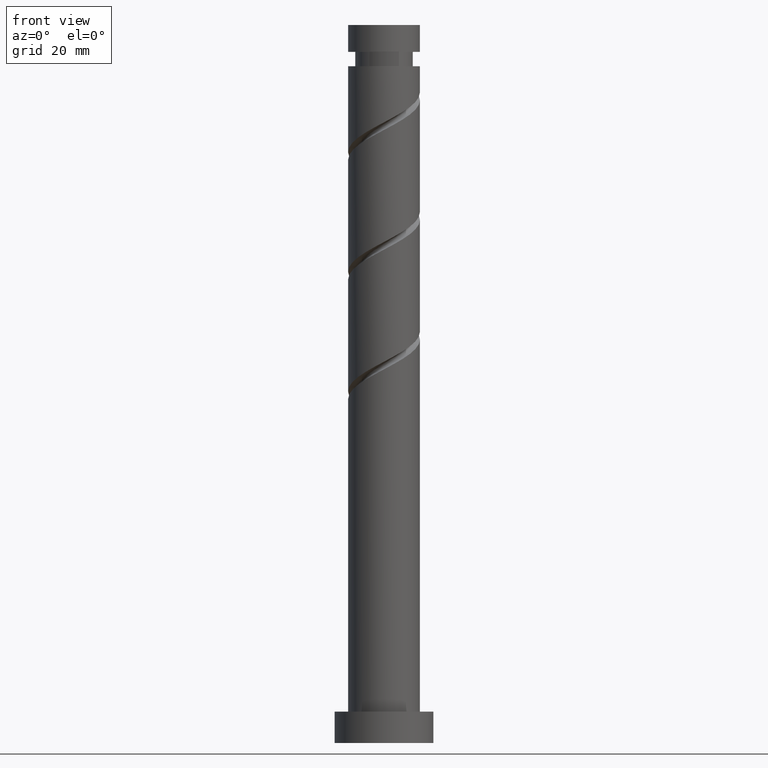
[diagram: clean part render]
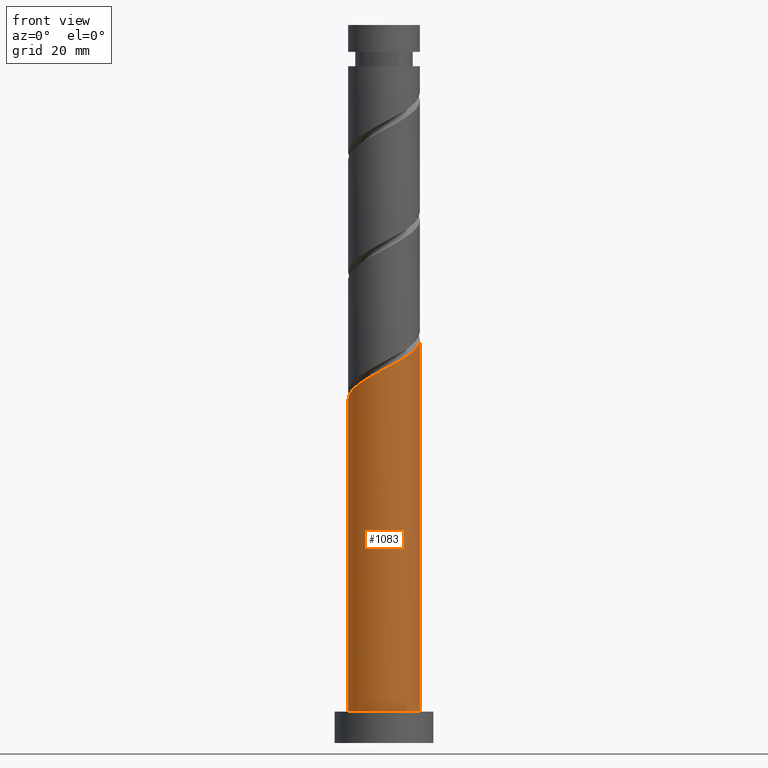
[diagram: same view with one face highlighted and labeled with its STEP entity id]
A machine part, front view. The second image highlights one B-rep face of the part: STEP entity #1083.
In plain terms, the highlighted cylindrical surface (edge-blend (fillet) strip) has radius 8 mm, axis along (-0, -0, -1).
Its self-contained STEP definition (entity closure, byte-faithful):
#158 = CARTESIAN_POINT ( 'NONE',  ( 3.736276773218409009, -7.073912345647833000, 85.34466490917378678 ) ) ;
#172 = EDGE_LOOP ( 'NONE', ( #547, #1606, #1247, #325 ) ) ;
#183 = CARTESIAN_POINT ( 'NONE',  ( 8.000000000000000000, 9.797174393178825657E-16, 7.000000000000000000 ) ) ;
#208 = CARTESIAN_POINT ( 'NONE',  ( -8.000000000000000000, 0.000000000000000000, 160.0000000000000000 ) ) ;
#277 = CARTESIAN_POINT ( 'NONE',  ( 7.792847194175212877, -1.808737849506035777, 88.98102854553739860 ) ) ;
#288 = CARTESIAN_POINT ( 'NONE',  ( -5.793709997158977387, -5.635241355040886191, 79.89011945462831932 ) ) ;
#293 = CARTESIAN_POINT ( 'NONE',  ( -1.827337510560427036, -7.872982807249216286, 82.31436187887078404 ) ) ;
#325 = ORIENTED_EDGE ( 'NONE', *, *, #598, .T. ) ;
#338 =( BOUNDED_CURVE ( )  B_SPLINE_CURVE ( 2, ( #1427, #792, #1297, #419, #1048, #1434, #922, #288, #1564, #682, #391, #293, #1154, #782, #1186, #1409, #158, #1554, #1570, #1179, #675, #424, #277, #1425, #529 ),
 .UNSPECIFIED., .F., .T. ) 
 B_SPLINE_CURVE_WITH_KNOTS ( ( 3, 2, 2, 2, 2, 2, 2, 2, 2, 2, 2, 2, 3 ),
 ( 0.05452521624175136333, 0.05681818181818176772, 0.06818181818181823228, 0.07954545454545458583, 0.09090909090909093937, 0.1022727272727272929, 0.1136363636363636465, 0.1250000000000000000, 0.1363636363636363535, 0.1477272727272727071, 0.1590909090909090606, 0.1704545454545454142, 0.1795252162417511343 ),
 .UNSPECIFIED. ) 
 CURVE ( )  GEOMETRIC_REPRESENTATION_ITEM ( )  RATIONAL_B_SPLINE_CURVE ( ( 0.9061101570135590144, 0.9072237824201411227, 0.9090909090909186085, 0.8998376744372208469, 0.9090909090909186085, 0.8998376744372208469, 0.9090909090909186085, 0.8998376744372208469, 0.9090909090909186085, 0.8998376744372208469, 0.9090909090909186085, 0.8998376744372208469, 0.9090909090909186085, 0.8998376744372208469, 0.9090909090909186085, 0.8998376744372208469, 0.9090909090909186085, 0.8998376744372208469, 0.9090909090909186085, 0.8998376744372208469, 0.9090909090909186085, 0.8998376744372208469, 0.9090909090909186085, 0.9017048011079984438, 0.9061101570135587924 ) ) 
 REPRESENTATION_ITEM ( '' )  );
#373 = EDGE_CURVE ( 'NONE', #396, #1254, #1625, .T. ) ;
#391 = CARTESIAN_POINT ( 'NONE',  ( -2.899365294310153995, -7.456117011565067898, 81.70830127281011812 ) ) ;
#396 = VERTEX_POINT ( 'NONE', #1241 ) ;
#401 = AXIS2_PLACEMENT_3D ( 'NONE', #1549, #909, #1420 ) ;
#409 = CARTESIAN_POINT ( 'NONE',  ( -8.000000000000000000, 0.000000000000000000, 7.000000000000000000 ) ) ;
#419 = CARTESIAN_POINT ( 'NONE',  ( -7.920620496058218052, -1.608350589319820889, 77.46587703038591144 ) ) ;
#424 = CARTESIAN_POINT ( 'NONE',  ( 7.532789951889099278, -2.929180124448062195, 88.37496793947681795 ) ) ;
#496 = DIRECTION ( 'NONE',  ( -0.000000000000000000, -0.000000000000000000, -1.000000000000000000 ) ) ;
#504 = DIRECTION ( 'NONE',  ( -0.000000000000000000, -0.000000000000000000, -1.000000000000000000 ) ) ;
#529 = CARTESIAN_POINT ( 'NONE',  ( 8.000000000000012434, 4.008427948537046319E-15, 89.94975588441830894 ) ) ;
#547 = ORIENTED_EDGE ( 'NONE', *, *, #373, .F. ) ;
#598 = EDGE_CURVE ( 'NONE', #695, #1254, #1436, .T. ) ;
#646 = FACE_OUTER_BOUND ( 'NONE', #172, .T. ) ;
#660 = EDGE_CURVE ( 'NONE', #688, #396, #338, .T. ) ;
#675 = CARTESIAN_POINT ( 'NONE',  ( 6.967601788265361584, -3.930970022801182573, 87.76890733341623729 ) ) ;
#682 = CARTESIAN_POINT ( 'NONE',  ( -3.971393078059878068, -7.039251215880919510, 81.10224066674956589 ) ) ;
#688 = VERTEX_POINT ( 'NONE', #1054 ) ;
#695 = VERTEX_POINT ( 'NONE', #409 ) ;
#782 = CARTESIAN_POINT ( 'NONE',  ( 0.4647580744500007799, -8.068892154005805395, 83.52648309099197377 ) ) ;
#792 = CARTESIAN_POINT ( 'NONE',  ( -8.000000000000014211, -0.2302042121905847616, 76.73852055580324816 ) ) ;
#902 = VECTOR ( 'NONE', #1228, 1000.000000000000000 ) ;
#909 = DIRECTION ( 'NONE',  ( 0.000000000000000000, 0.000000000000000000, 1.000000000000000000 ) ) ;
#922 = CARTESIAN_POINT ( 'NONE',  ( -6.470182492983659550, -4.704969554363553463, 79.28405884856771024 ) ) ;
#1048 = CARTESIAN_POINT ( 'NONE',  ( -7.533637742433276330, -2.691524171503019591, 78.07193763644652051 ) ) ;
#1054 = CARTESIAN_POINT ( 'NONE',  ( -8.000000000000012434, -4.397305286827952944E-15, 76.61642255108502297 ) ) ;
#1083 = ADVANCED_FACE ( 'NONE', ( #646 ), #1388, .T. ) ;
#1129 = CARTESIAN_POINT ( 'NONE',  ( 8.000000000000000000, 9.797174393178825657E-16, 160.0000000000000000 ) ) ;
#1154 = CARTESIAN_POINT ( 'NONE',  ( -0.6812897180552131005, -7.970937480627512173, 82.92042248493137890 ) ) ;
#1179 = CARTESIAN_POINT ( 'NONE',  ( 6.402413624641629220, -4.932759921154301175, 87.16284672735559980 ) ) ;
#1186 = CARTESIAN_POINT ( 'NONE',  ( 1.591979899370592699, -7.840000000000012292, 84.13254369705255442 ) ) ;
#1191 = AXIS2_PLACEMENT_3D ( 'NONE', #1404, #496, #1494 ) ;
#1228 = DIRECTION ( 'NONE',  ( -0.000000000000000000, -0.000000000000000000, -1.000000000000000000 ) ) ;
#1241 = CARTESIAN_POINT ( 'NONE',  ( 8.000000000000012434, 4.008427948537045530E-15, 89.94975588441830894 ) ) ;
#1247 = ORIENTED_EDGE ( 'NONE', *, *, #1505, .T. ) ;
#1254 = VERTEX_POINT ( 'NONE', #183 ) ;
#1297 = CARTESIAN_POINT ( 'NONE',  ( -7.986762466259771820, -0.4600275073779058754, 76.85981642432527394 ) ) ;
#1385 = VECTOR ( 'NONE', #504, 1000.000000000000000 ) ;
#1388 = CYLINDRICAL_SURFACE ( 'NONE', #1191, 8.000000000000000000 ) ;
#1404 = CARTESIAN_POINT ( 'NONE',  ( 0.000000000000000000, 0.000000000000000000, 160.0000000000000000 ) ) ;
#1409 = CARTESIAN_POINT ( 'NONE',  ( 2.719201724291185229, -7.611107845994222743, 84.73860430311317771 ) ) ;
#1420 = DIRECTION ( 'NONE',  ( 1.000000000000000000, 0.000000000000000000, 0.000000000000000000 ) ) ;
#1425 = CARTESIAN_POINT ( 'NONE',  ( 8.000000000000012434, -0.9162314190810022518, 89.46379593144700948 ) ) ;
#1427 = CARTESIAN_POINT ( 'NONE',  ( -8.000000000000012434, -4.397305286827952944E-15, 76.61642255108502297 ) ) ;
#1434 = CARTESIAN_POINT ( 'NONE',  ( -7.146654988808340825, -3.774697753686219848, 78.67799824250710117 ) ) ;
#1436 = CIRCLE ( 'NONE', #401, 8.000000000000000000 ) ;
#1494 = DIRECTION ( 'NONE',  ( -1.000000000000000000, 0.000000000000000000, 0.000000000000000000 ) ) ;
#1505 = EDGE_CURVE ( 'NONE', #688, #695, #1613, .T. ) ;
#1549 = CARTESIAN_POINT ( 'NONE',  ( 0.000000000000000000, 0.000000000000000000, 7.000000000000000000 ) ) ;
#1554 = CARTESIAN_POINT ( 'NONE',  ( 4.753351822145638117, -6.536716845301446810, 85.95072551523438165 ) ) ;
#1564 = CARTESIAN_POINT ( 'NONE',  ( -4.882551537609428394, -6.337246285460905071, 80.49618006068892839 ) ) ;
#1570 = CARTESIAN_POINT ( 'NONE',  ( 5.577882723393631892, -5.734738383227874436, 86.55678612129500493 ) ) ;
#1606 = ORIENTED_EDGE ( 'NONE', *, *, #660, .F. ) ;
#1613 = LINE ( 'NONE', #208, #902 ) ;
#1625 = LINE ( 'NONE', #1129, #1385 ) ;